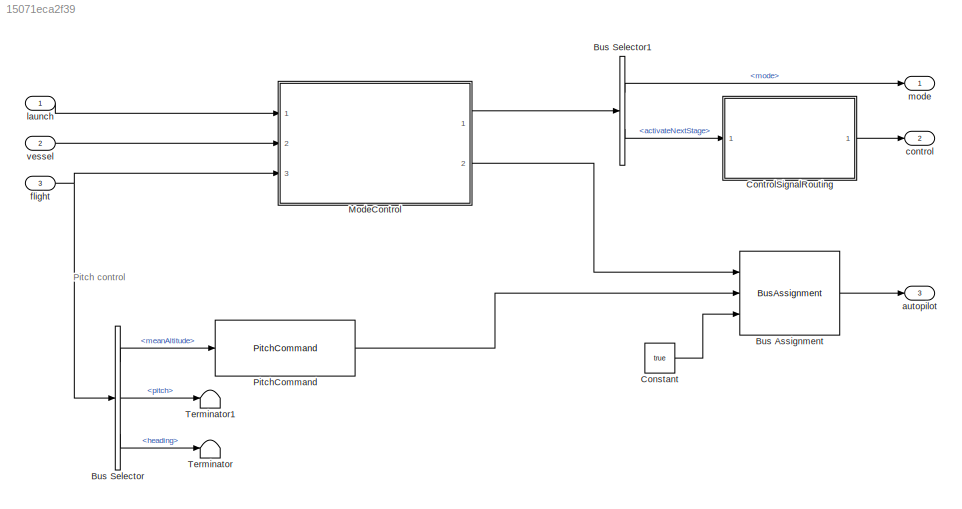
MODEL slx_15071eca2f39
KIND model
CONFIG AbsTol = auto
CONFIG EnableMultiTasking = off
CONFIG FixedStep = 0.01
CONFIG MaxStep = auto
CONFIG MinStep = auto
CONFIG RelTol = 1e-3
CONFIG SampleTimeConstraint = Unconstrained
CONFIG SolverName = FixedStepAuto
CONFIG StartTime = 0.0
CONFIG StopTime = inf
BLOCK [BusAssignment] Bus Assignment
  AssignedSignals = targetPitch,engage
  Ports = [3, 1]
BLOCK [BusSelector] Bus Selector
  OutputSignals = meanAltitude,pitch,heading
  Ports = [1, 3]
BLOCK [BusSelector] Bus Selector1
  OutputSignals = mode,activateNextStage
  Ports = [1, 2]
BLOCK [Constant] Constant
  OutDataTypeStr = boolean
  Value = true
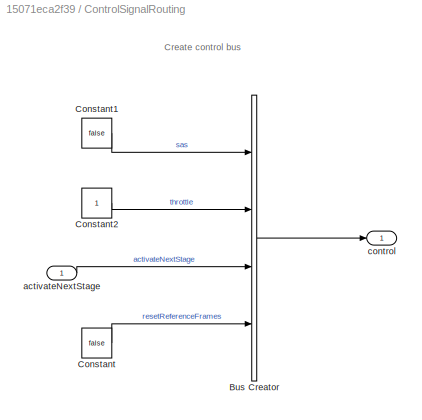
BLOCK [SubSystem] ControlSignalRouting
  Ports = [1, 1]
  RequestExecContextInheritance = off
BLOCK [BusCreator] ControlSignalRouting/Bus Creator
  DisplayOption = bar
  InheritFromInputs = off
  Inputs = 4
  NonVirtualBus = on
  OutDataTypeStr = Bus: control
  Ports = [4, 1]
BLOCK [Constant] ControlSignalRouting/Constant
  OutDataTypeStr = boolean
  Value = false
BLOCK [Constant] ControlSignalRouting/Constant1
  OutDataTypeStr = boolean
  Value = false
BLOCK [Constant] ControlSignalRouting/Constant2
BLOCK [Inport] ControlSignalRouting/activateNextStage
BLOCK [Outport] ControlSignalRouting/control
  OutDataTypeStr = Bus: control
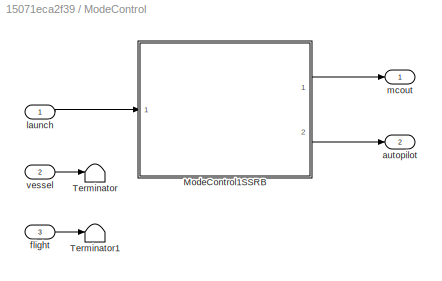
BLOCK [SubSystem] ModeControl
  Ports = [3, 2]
  RequestExecContextInheritance = off
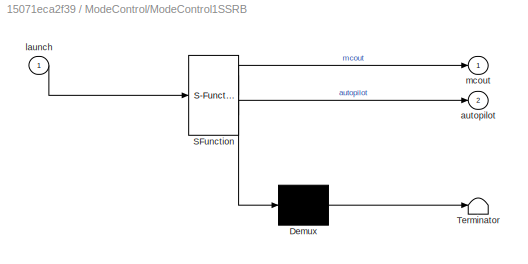
BLOCK [SubSystem] ModeControl/ModeControl1SSRB
  ErrorFcn = Stateflow.Translate.translate
  PermitHierarchicalResolution = ExplicitOnly
  Ports = [1, 2]
  RequestExecContextInheritance = off
  SFBlockType = Chart
  TreatAsAtomicUnit = on
BLOCK [Demux] ModeControl/ModeControl1SSRB/ Demux 
  Outputs = 1
  Ports = [1, 1]
BLOCK [S-Function] ModeControl/ModeControl1SSRB/ SFunction 
  EnableBusSupport = on
  FunctionName = sf_sfun
  PortCounts = [1 3]
  Ports = [1, 3]
  SFcnIsStateOwnerBlock = off
  SFunctionDeploymentMode = off
  Tag = Stateflow S-Function 3
BLOCK [Terminator] ModeControl/ModeControl1SSRB/ Terminator 
BLOCK [Outport] ModeControl/ModeControl1SSRB/autopilot
  Port = 2
BLOCK [Inport] ModeControl/ModeControl1SSRB/launch
BLOCK [Outport] ModeControl/ModeControl1SSRB/mcout
BLOCK [Terminator] ModeControl/Terminator
BLOCK [Terminator] ModeControl/Terminator1
BLOCK [Outport] ModeControl/autopilot
  Port = 2
BLOCK [Inport] ModeControl/flight
  Port = 3
BLOCK [Inport] ModeControl/launch
BLOCK [Outport] ModeControl/mcout
BLOCK [Inport] ModeControl/vessel
  Port = 2
BLOCK [Reference] PitchCommand  REF=ksplib/PitchCommand  (lib defined in slx_22327d9a050f)
  Ports = [1, 1]
  SourceBlock = ksplib/PitchCommand
  SourceType = Pitch Command
BLOCK [Terminator] Terminator
BLOCK [Terminator] Terminator1
BLOCK [Outport] autopilot
  OutDataTypeStr = Bus: autopilot
  Port = 3
BLOCK [Outport] control
  OutDataTypeStr = Bus: control
  Port = 2
BLOCK [Inport] flight
  OutDataTypeStr = Bus: flight
  Port = 3
BLOCK [Inport] launch
  OutDataTypeStr = boolean
  PortDimensions = 1
BLOCK [Outport] mode
BLOCK [Inport] vessel
  OutDataTypeStr = Bus: vesselRx
  Port = 2
ANNOTATION (root): Pitch control
ANNOTATION ControlSignalRouting: Create control bus
LINE Bus Assignment:1 -> autopilot:1
LINE Bus Selector1:1 -> mode:1
LINE Bus Selector1:2 -> ControlSignalRouting:1
LINE Bus Selector:1 -> PitchCommand:1
LINE Bus Selector:2 -> Terminator1:1
LINE Bus Selector:3 -> Terminator:1
LINE Constant:1 -> Bus Assignment:3
LINE ControlSignalRouting/Bus Creator:1 -> ControlSignalRouting/control:1
LINE ControlSignalRouting/Constant1:1 -> ControlSignalRouting/Bus Creator:1
LINE ControlSignalRouting/Constant2:1 -> ControlSignalRouting/Bus Creator:2
LINE ControlSignalRouting/Constant:1 -> ControlSignalRouting/Bus Creator:4
LINE ControlSignalRouting/activateNextStage:1 -> ControlSignalRouting/Bus Creator:3
LINE ControlSignalRouting:1 -> control:1
LINE ModeControl/ModeControl1SSRB:1 -> ModeControl/mcout:1
LINE ModeControl/ModeControl1SSRB:2 -> ModeControl/autopilot:1
LINE ModeControl/flight:1 -> ModeControl/Terminator1:1
LINE ModeControl/launch:1 -> ModeControl/ModeControl1SSRB:1
LINE ModeControl/vessel:1 -> ModeControl/Terminator:1
LINE ModeControl:1 -> Bus Selector1:1
LINE ModeControl:2 -> Bus Assignment:1
LINE PitchCommand:1 -> Bus Assignment:2
NET flight:1 -> Bus Selector:1, ModeControl:3
LINE launch:1 -> ModeControl:1
LINE vessel:1 -> ModeControl:2
note: NET lines group one-source signal fan-out (src -> all destinations, sorted); 1:1 wires keep LINE
CHART ModeControl/ModeControl1SSRB states=5 transitions=9
  STATE_LABEL 'Prelaunch\n\nen:\nmcout.mode = int16(-100);\nautopilot.targetPitch = 90;\nautopilot.targetHeading = 90;\nautopilot.engage = true;'
  STATE_LABEL 'Launch\n\nen:\nmcout.mode = int16(0);'
  STATE_LABEL 'PreFlightChecks\n\nen:\n% to do: add prelaunch check logic\nlaunchChecksOK = true;'
  STATE_LABEL 'PreFlightChecks\n\nen:\n% to do: add prelaunch check logic\nlaunchChecksOK = true;'
  STATE_LABEL 'Stage1\n\nen:\nmcout.mode = int16(100);\ndu:\nif ~launchCmdSent\n    mcout.activateNextStage = true;\n    launchCmdSent = true;\nelse\n    mcout.activateNextStage = false;\nend'
  STATE_LABEL 'SRBSeparation\n\nen:\nmcout.mode = int16(200);\ndu:\nif ~stage1sepCmdSent\n    mcout.activateNextStage = true;\n    stage1sepCmdSent = true;\nelse\n    mcout.activateNextStage = false;\nend'
CHART  states=0 transitions=0
